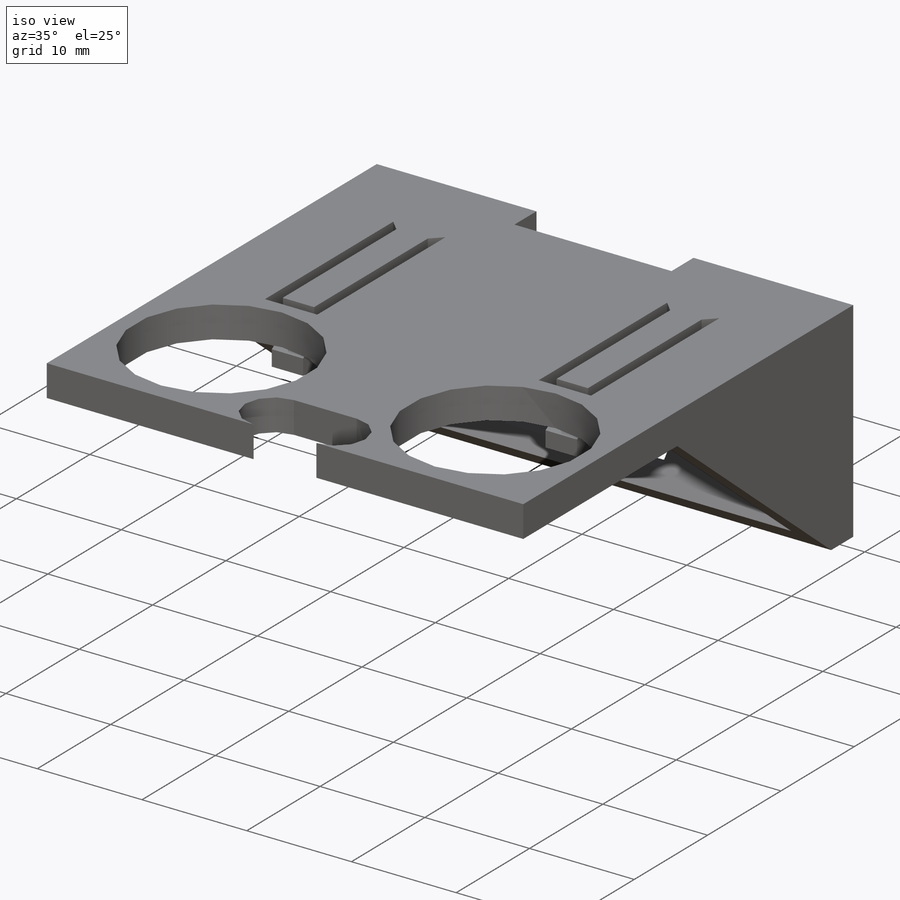
[diagram: iso view]
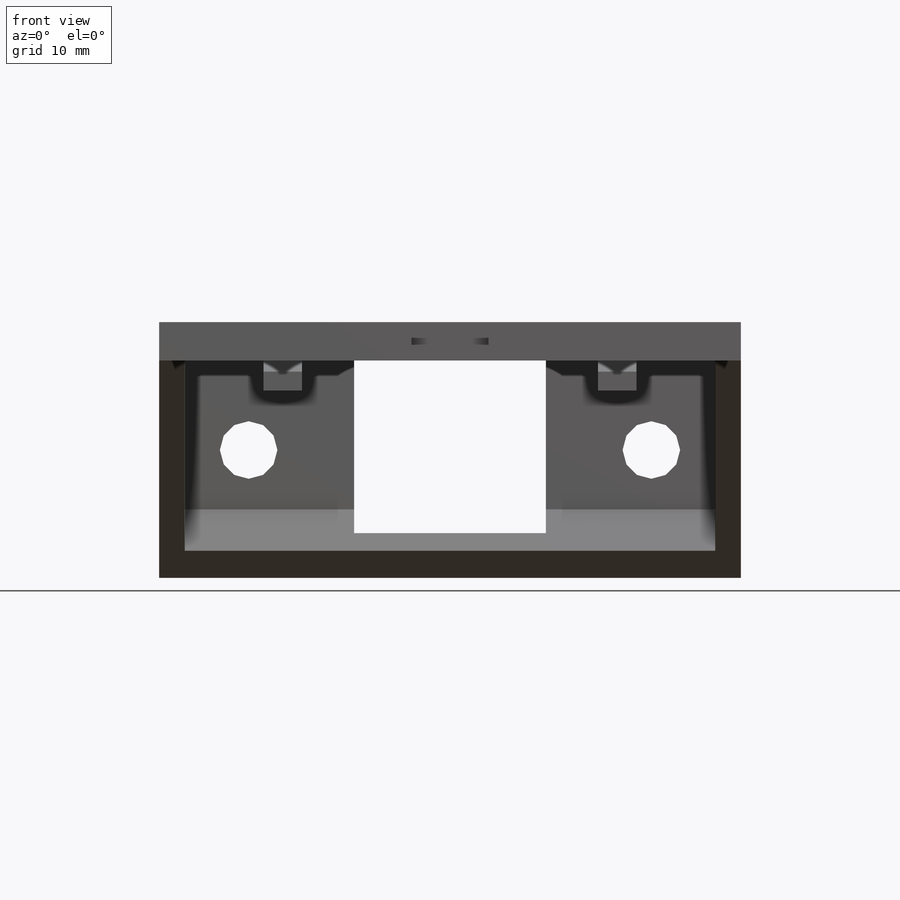
[diagram: front view]
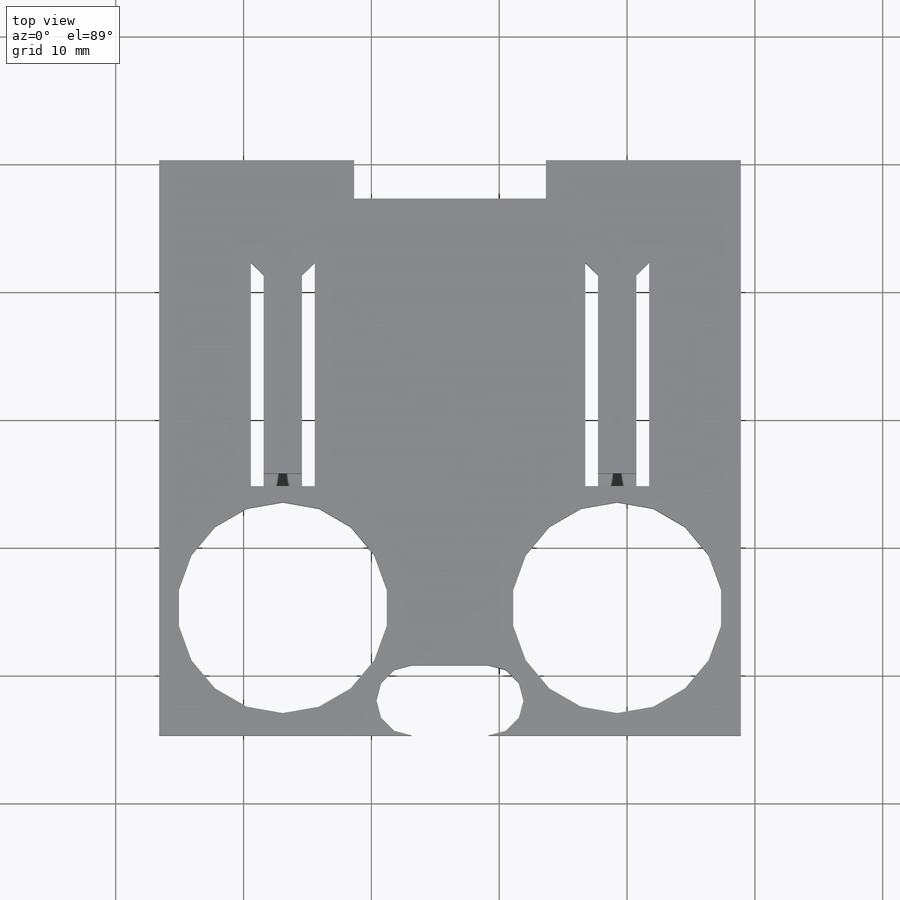
[diagram: top view]
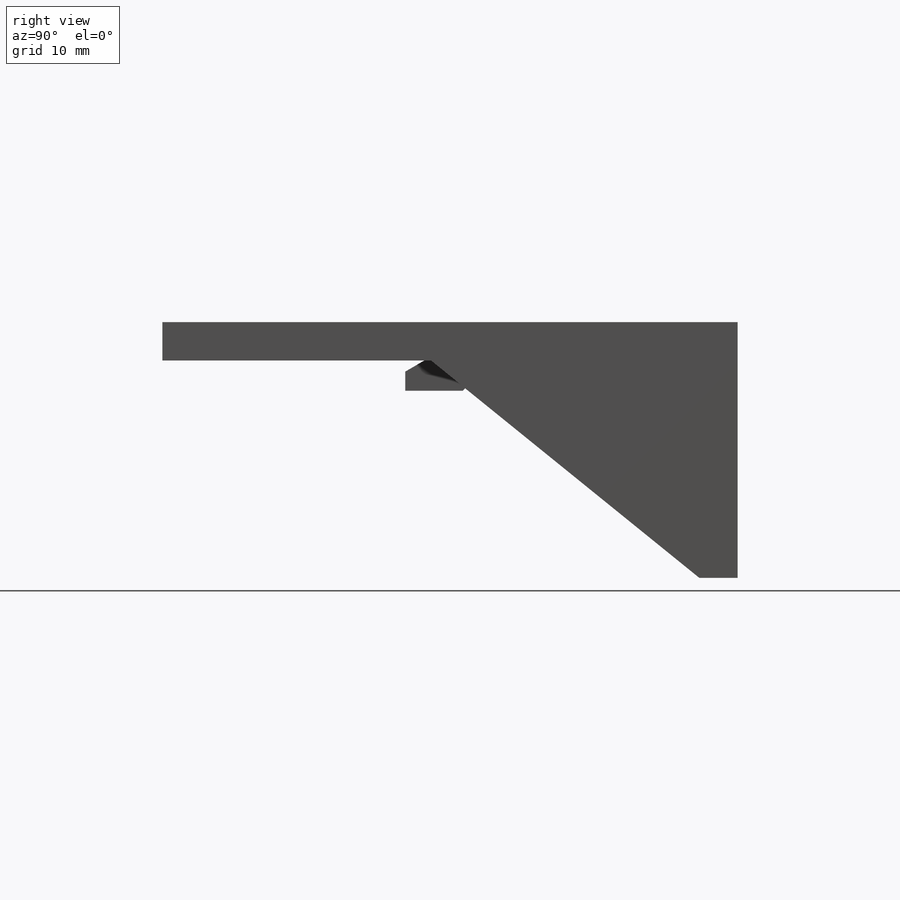
[diagram: right view]
SOLIDWORKS PART (.sldprt)
format: sldprt  version: not decoded by parser v0  size: 476,672 bytes
history: native  units: mm
features: sketch x12, extrude x6, cut_extrude x5, mirror x2, chamfer x2, material x1, pattern_linear x1, plane x1 (+12 scaffold rows collapsed)
feature tree (42):
  scaffold x12  (default folders/planes/origin — collapsed)
  material  "Material <not specified>"
  sketch  "Sketch1"  dims[c1.D3=4.5mm c1.D4=4.5mm c1.D5=4.5mm c1.D6=4.5mm c1.D7=4.5mm c1.D8=4.5mm c1.D1=45.5mm c1.D2=20.0mm c2.D5=7.0mm c2.D6=7.0mm c2.D7=10.0mm c2.D8=10.0mm c2.D9=7.5mm c2.D10=7.5mm]
  extrude  "Boss-Extrude1"  Depth=3mm
  sketch  "Sketch2"  dims[D1=3.0mm]
  extrude  "Boss-Extrude2"  Depth=42mm
  sketch  "Sketch3"  dims[c1.D1=16.5mm c1.D2=16.5mm c1.D3=16.2mm c1.D4=16.2mm c1.D5=16.2mm c2.D3=10.0mm c2.D4=10.0mm c2.D5=26.15mm]
  cut_extrude  "Cut-Extrude1"  [1 undecoded]
  sketch  "Sketch4"  dims[D1=21.0mm]
  extrude  "Boss-Extrude3"  Depth=2mm
  pattern_linear  "LPattern1"  Count1=2 Count2=1 Spacing1=43.5mm Spacing2=10mm
  sketch  "Sketch5"  dims[D1=1.0mm D2=1.0mm D3=3.0mm D4=1.0mm D5=19.5mm D6=5.0mm D7=5.325mm]
  cut_extrude  "Cut-Extrude2"  [1 undecoded]
  sketch  "Sketch6"  dims[c1.D1=3.0mm c1.D2=0.0mm c1.D3=1.5mm c1.D4=1.5mm c2.D4=60.0deg c2.D5=1.5mm c2.D1=~2.811063mm c3.D1=45.0deg c3.D2=3.0mm]
  extrude  "Boss-Extrude4"  Depth=3mm
  sketch  "Sketch8"  dims[D1=23.15mm]
  plane  "Plane5"
  mirror  "Mirror7"
  sketch  "Sketch9"  dims[c1.D2=2.75mm c1.D3=2.75mm c1.D1=5.5mm c2.D2=6.0mm]
  cut_extrude  "Cut-Extrude3"  [1 undecoded]
  sketch  "Sketch10"  dims[D1=10.0mm D2=2.5mm D3=20.0mm]
  cut_extrude  "Cut-Extrude4"  Depth=2mm
  sketch  "Sketch11"  dims[D1=1.5mm D2=3.5mm D3=~5.052941mm]
  extrude  "Boss-Extrude5"  [1 undecoded]
  sketch  "Sketch13"
  cut_extrude  "Cut-Extrude6"  Depth=1mm
  chamfer  "Chamfer1"  Distance=1mm Angle=45deg
  extrude  "Boss-Extrude6"  [1 undecoded]
  sketch  "Sketch11<3>"  dims[D1=7.5mm]
  mirror  "Mirror8"
  chamfer  "Chamfer2"  Distance=1mm Angle=45deg
decode coverage: 20 of 28 modeling features carry decoded parameters
note: ~ marks probable driven/reference dimensions
note: 5 parameter values undecoded
summary: no parameter record found for 5 features
note: suppression state not decoded; provenance and decode notes live in map.json
